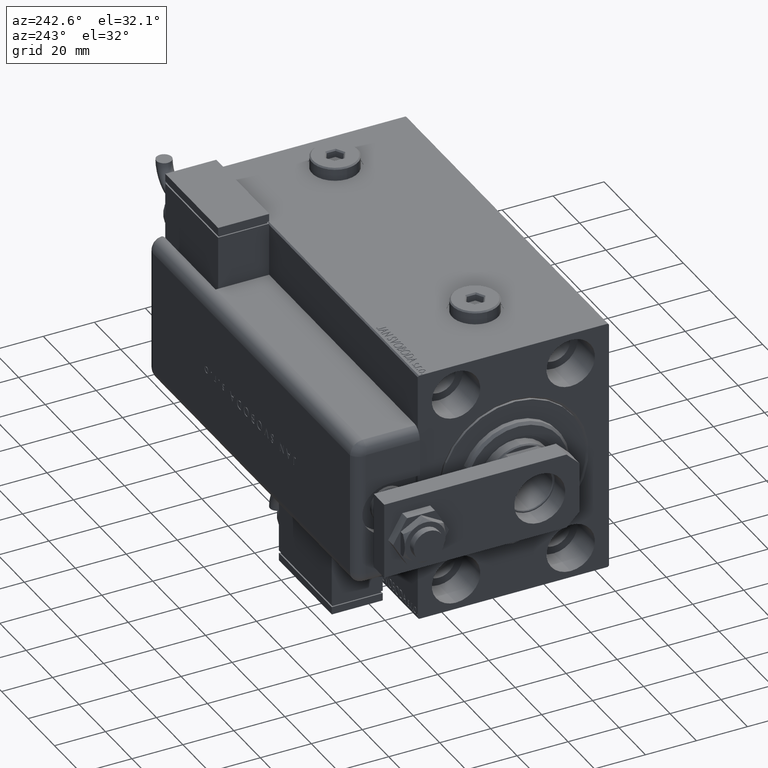
[diagram: clean part render]
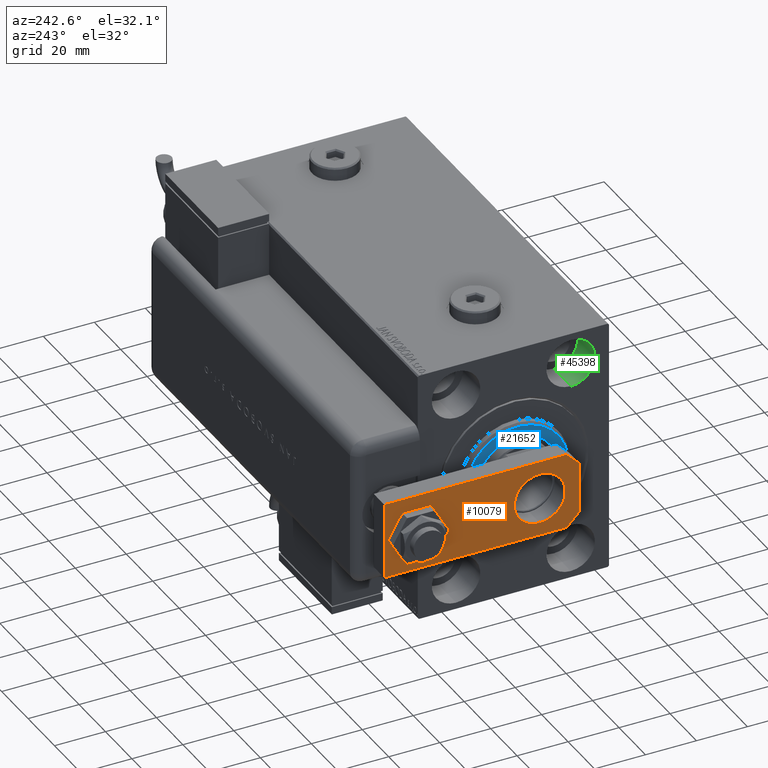
[diagram: same view with three faces highlighted in distinct colors, each labeled with its STEP entity id]
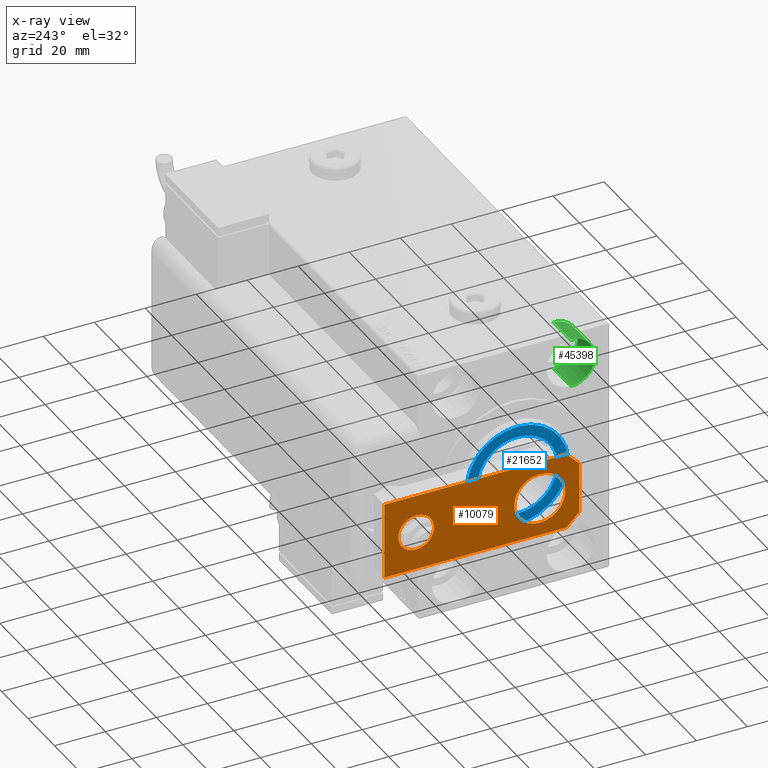
[diagram: x-ray of the same camera — body ghosted, the three highlighted faces saturated]
A machine part, auxiliary view with three faces highlighted in distinct colors.
The next image is the same camera in x-ray (body ghosted, the three faces saturated) — at least one of them is partly hidden behind the body in this view.
Their STEP definitions:

[orange] entity #10079 — the highlighted planar face has unit normal (1, 0, -0).
#28 = DIRECTION ( 'NONE',  ( -1.000000000000000000, 0.000000000000000000, 0.000000000000000000 ) ) ;
#847 = AXIS2_PLACEMENT_3D ( 'NONE', #5897, #14549, #57809 ) ;
#1316 = EDGE_LOOP ( 'NONE', ( #6418, #31873, #56323, #2179, #52308, #50101 ) ) ;
#2179 = ORIENTED_EDGE ( 'NONE', *, *, #42529, .F. ) ;
#2453 = DIRECTION ( 'NONE',  ( 1.000000000000000000, 0.000000000000000000, 0.000000000000000000 ) ) ;
#2677 = EDGE_LOOP ( 'NONE', ( #31313, #34006 ) ) ;
#4307 = VERTEX_POINT ( 'NONE', #36382 ) ;
#4385 = VECTOR ( 'NONE', #24376, 1000.000000000000000 ) ;
#5558 = CARTESIAN_POINT ( 'NONE',  ( 15.00000000000000888, 9.629649721936179265E-32, 0.000000000000000000 ) ) ;
#5747 = CIRCLE ( 'NONE', #43242, 7.000000000000000000 ) ;
#5897 = CARTESIAN_POINT ( 'NONE',  ( 0.000000000000000000, 15.50000000000000000, 0.000000000000000000 ) ) ;
#6304 = LINE ( 'NONE', #35617, #12056 ) ;
#6418 = ORIENTED_EDGE ( 'NONE', *, *, #24288, .F. ) ;
#8834 = VERTEX_POINT ( 'NONE', #22436 ) ;
#9646 = CARTESIAN_POINT ( 'NONE',  ( 1.963948872468190046E-17, 64.00000000000000000, 0.000000000000000000 ) ) ;
#10079 = ADVANCED_FACE ( 'NONE', ( #30361, #26630, #26939 ), #11527, .F. ) ;
#11527 = PLANE ( 'NONE',  #22904 ) ;
#11585 = ORIENTED_EDGE ( 'NONE', *, *, #25014, .T. ) ;
#11719 = VERTEX_POINT ( 'NONE', #15733 ) ;
#12056 = VECTOR ( 'NONE', #30065, 1000.000000000000114 ) ;
#12422 = EDGE_CURVE ( 'NONE', #52066, #16946, #12777, .T. ) ;
#12777 = LINE ( 'NONE', #26984, #15146 ) ;
#13866 = AXIS2_PLACEMENT_3D ( 'NONE', #23801, #52547, #18877 ) ;
#14549 = DIRECTION ( 'NONE',  ( 0.000000000000000000, 0.000000000000000000, 1.000000000000000000 ) ) ;
#15146 = VECTOR ( 'NONE', #22947, 1000.000000000000000 ) ;
#15733 = CARTESIAN_POINT ( 'NONE',  ( -7.000000000000000000, 64.00000000000000000, 0.000000000000000000 ) ) ;
#16057 = VERTEX_POINT ( 'NONE', #44395 ) ;
#16472 = VECTOR ( 'NONE', #39344, 1000.000000000000114 ) ;
#16946 = VERTEX_POINT ( 'NONE', #41748 ) ;
#18473 = LINE ( 'NONE', #46596, #51083 ) ;
#18877 = DIRECTION ( 'NONE',  ( 1.000000000000000000, 0.000000000000000000, 0.000000000000000000 ) ) ;
#19752 = ORIENTED_EDGE ( 'NONE', *, *, #23472, .T. ) ;
#20056 = VECTOR ( 'NONE', #28, 1000.000000000000000 ) ;
#20157 = VERTEX_POINT ( 'NONE', #30066 ) ;
#22366 = VERTEX_POINT ( 'NONE', #42385 ) ;
#22419 = EDGE_CURVE ( 'NONE', #43843, #16946, #43691, .T. ) ;
#22436 = CARTESIAN_POINT ( 'NONE',  ( 15.00000000000000888, 5.000000000000004441, 0.000000000000000000 ) ) ;
#22904 = AXIS2_PLACEMENT_3D ( 'NONE', #31283, #35006, #40864 ) ;
#22947 = DIRECTION ( 'NONE',  ( -1.360567432138672328E-16, -1.000000000000000000, 0.000000000000000000 ) ) ;
#23472 = EDGE_CURVE ( 'NONE', #11719, #22366, #54018, .T. ) ;
#23801 = CARTESIAN_POINT ( 'NONE',  ( 0.000000000000000000, 15.50000000000000000, 0.000000000000000000 ) ) ;
#23951 = CARTESIAN_POINT ( 'NONE',  ( -10.00000000000001066, 9.629649721936179265E-32, 0.000000000000000000 ) ) ;
#24288 = EDGE_CURVE ( 'NONE', #43843, #16057, #18473, .T. ) ;
#24376 = DIRECTION ( 'NONE',  ( -6.802837160693361638E-17, 1.000000000000000000, 0.000000000000000000 ) ) ;
#25014 = EDGE_CURVE ( 'NONE', #22366, #11719, #5747, .T. ) ;
#25428 = CARTESIAN_POINT ( 'NONE',  ( -10.00000000000001066, 9.629649721936179265E-32, 0.000000000000000000 ) ) ;
#26269 = EDGE_CURVE ( 'NONE', #29583, #4307, #48217, .T. ) ;
#26630 = FACE_BOUND ( 'NONE', #32325, .T. ) ;
#26939 = FACE_BOUND ( 'NONE', #2677, .T. ) ;
#26984 = CARTESIAN_POINT ( 'NONE',  ( -14.99999999999999822, 76.50000000000000000, 0.000000000000000000 ) ) ;
#28783 = DIRECTION ( 'NONE',  ( 1.000000000000000000, 0.000000000000000000, 0.000000000000000000 ) ) ;
#29022 = LINE ( 'NONE', #5558, #4385 ) ;
#29583 = VERTEX_POINT ( 'NONE', #44954 ) ;
#30065 = DIRECTION ( 'NONE',  ( -0.7071067811865489050, -0.7071067811865460184, -0.000000000000000000 ) ) ;
#30066 = CARTESIAN_POINT ( 'NONE',  ( 15.00000000000000355, 76.50000000000000000, 0.000000000000000000 ) ) ;
#30361 = FACE_OUTER_BOUND ( 'NONE', #1316, .T. ) ;
#31283 = CARTESIAN_POINT ( 'NONE',  ( 0.000000000000000000, 0.000000000000000000, 0.000000000000000000 ) ) ;
#31313 = ORIENTED_EDGE ( 'NONE', *, *, #26269, .T. ) ;
#31873 = ORIENTED_EDGE ( 'NONE', *, *, #22419, .T. ) ;
#32078 = DIRECTION ( 'NONE',  ( 1.000000000000000000, 0.000000000000000000, 0.000000000000000000 ) ) ;
#32325 = EDGE_LOOP ( 'NONE', ( #19752, #11585 ) ) ;
#34006 = ORIENTED_EDGE ( 'NONE', *, *, #46389, .T. ) ;
#35006 = DIRECTION ( 'NONE',  ( -0.000000000000000000, 0.000000000000000000, 1.000000000000000000 ) ) ;
#35617 = CARTESIAN_POINT ( 'NONE',  ( 15.00000000000000888, 5.000000000000004441, 0.000000000000000000 ) ) ;
#36382 = CARTESIAN_POINT ( 'NONE',  ( 10.00000000000000711, 15.50000000000000178, 0.000000000000000000 ) ) ;
#36805 = LINE ( 'NONE', #55665, #20056 ) ;
#39344 = DIRECTION ( 'NONE',  ( -0.7071067811865460184, 0.7071067811865489050, -0.000000000000000000 ) ) ;
#39527 = DIRECTION ( 'NONE',  ( 0.000000000000000000, 0.000000000000000000, 1.000000000000000000 ) ) ;
#39659 = CARTESIAN_POINT ( 'NONE',  ( -14.99999999999999822, 76.50000000000000000, 0.000000000000000000 ) ) ;
#40148 = AXIS2_PLACEMENT_3D ( 'NONE', #9646, #51678, #28783 ) ;
#40864 = DIRECTION ( 'NONE',  ( 1.000000000000000000, 0.000000000000000000, 0.000000000000000000 ) ) ;
#41748 = CARTESIAN_POINT ( 'NONE',  ( -15.00000000000000888, 5.000000000000018652, 0.000000000000000000 ) ) ;
#42385 = CARTESIAN_POINT ( 'NONE',  ( 7.000000000000000000, 64.00000000000000000, 0.000000000000000000 ) ) ;
#42529 = EDGE_CURVE ( 'NONE', #20157, #52066, #36805, .T. ) ;
#43242 = AXIS2_PLACEMENT_3D ( 'NONE', #44474, #39527, #2453 ) ;
#43691 = LINE ( 'NONE', #25428, #16472 ) ;
#43843 = VERTEX_POINT ( 'NONE', #23951 ) ;
#44395 = CARTESIAN_POINT ( 'NONE',  ( 9.999999999999982236, 9.629649721936179265E-32, 0.000000000000000000 ) ) ;
#44474 = CARTESIAN_POINT ( 'NONE',  ( 1.963948872468190046E-17, 64.00000000000000000, 0.000000000000000000 ) ) ;
#44954 = CARTESIAN_POINT ( 'NONE',  ( -10.00000000000000711, 15.50000000000000000, 0.000000000000000000 ) ) ;
#46389 = EDGE_CURVE ( 'NONE', #4307, #29583, #47417, .T. ) ;
#46596 = CARTESIAN_POINT ( 'NONE',  ( -15.00000000000000888, 9.629649721936179265E-32, 0.000000000000000000 ) ) ;
#47417 = CIRCLE ( 'NONE', #13866, 10.00000000000000711 ) ;
#48217 = CIRCLE ( 'NONE', #847, 10.00000000000000711 ) ;
#50101 = ORIENTED_EDGE ( 'NONE', *, *, #50330, .T. ) ;
#50330 = EDGE_CURVE ( 'NONE', #8834, #16057, #6304, .T. ) ;
#51083 = VECTOR ( 'NONE', #32078, 1000.000000000000000 ) ;
#51678 = DIRECTION ( 'NONE',  ( 0.000000000000000000, 0.000000000000000000, 1.000000000000000000 ) ) ;
#52066 = VERTEX_POINT ( 'NONE', #39659 ) ;
#52308 = ORIENTED_EDGE ( 'NONE', *, *, #59706, .F. ) ;
#52547 = DIRECTION ( 'NONE',  ( 0.000000000000000000, 0.000000000000000000, 1.000000000000000000 ) ) ;
#54018 = CIRCLE ( 'NONE', #40148, 7.000000000000000000 ) ;
#55665 = CARTESIAN_POINT ( 'NONE',  ( 15.00000000000000355, 76.50000000000000000, 0.000000000000000000 ) ) ;
#56323 = ORIENTED_EDGE ( 'NONE', *, *, #12422, .F. ) ;
#57809 = DIRECTION ( 'NONE',  ( 1.000000000000000000, 0.000000000000000000, 0.000000000000000000 ) ) ;
#59706 = EDGE_CURVE ( 'NONE', #8834, #20157, #29022, .T. ) ;

[blue] entity #21652 — the highlighted planar face has unit normal (-1, 0, 0).
#1397 = CARTESIAN_POINT ( 'NONE',  ( 3.000000000000000000, 0.000000000000000000, 15.75000000000000000 ) ) ;
#2324 = CARTESIAN_POINT ( 'NONE',  ( 3.000000000000000000, 1.928818708657080950E-15, -15.75000000000000000 ) ) ;
#2434 = DIRECTION ( 'NONE',  ( 1.000000000000000000, -0.000000000000000000, 0.000000000000000000 ) ) ;
#3538 = VERTEX_POINT ( 'NONE', #2324 ) ;
#3982 = CIRCLE ( 'NONE', #34531, 19.99999999999999645 ) ;
#5192 = ORIENTED_EDGE ( 'NONE', *, *, #34846, .T. ) ;
#5576 = AXIS2_PLACEMENT_3D ( 'NONE', #54346, #2434, #26496 ) ;
#5909 = EDGE_LOOP ( 'NONE', ( #5192, #46460 ) ) ;
#10108 = ORIENTED_EDGE ( 'NONE', *, *, #56160, .T. ) ;
#11394 = FACE_BOUND ( 'NONE', #33822, .T. ) ;
#12275 = DIRECTION ( 'NONE',  ( 1.000000000000000000, -0.000000000000000000, 0.000000000000000000 ) ) ;
#15600 = EDGE_CURVE ( 'NONE', #28013, #21136, #56820, .T. ) ;
#16375 = ORIENTED_EDGE ( 'NONE', *, *, #23821, .T. ) ;
#16857 = CARTESIAN_POINT ( 'NONE',  ( 3.000000000000000000, 0.000000000000000000, 19.99999999999999645 ) ) ;
#18668 = DIRECTION ( 'NONE',  ( -1.000000000000000000, 0.000000000000000000, -0.000000000000000000 ) ) ;
#18839 = DIRECTION ( 'NONE',  ( 0.000000000000000000, 0.000000000000000000, -1.000000000000000000 ) ) ;
#20151 = AXIS2_PLACEMENT_3D ( 'NONE', #32573, #18668, #51427 ) ;
#21136 = VERTEX_POINT ( 'NONE', #16857 ) ;
#21652 = ADVANCED_FACE ( 'NONE', ( #44767, #11394 ), #39509, .T. ) ;
#23821 = EDGE_CURVE ( 'NONE', #3538, #45007, #60939, .T. ) ;
#26496 = DIRECTION ( 'NONE',  ( 0.000000000000000000, 0.000000000000000000, -1.000000000000000000 ) ) ;
#28013 = VERTEX_POINT ( 'NONE', #38732 ) ;
#28118 = CARTESIAN_POINT ( 'NONE',  ( 3.000000000000000000, 0.000000000000000000, 0.000000000000000000 ) ) ;
#28368 = AXIS2_PLACEMENT_3D ( 'NONE', #28118, #33053, #18839 ) ;
#30109 = AXIS2_PLACEMENT_3D ( 'NONE', #60584, #55960, #46980 ) ;
#31111 = DIRECTION ( 'NONE',  ( 0.000000000000000000, 0.000000000000000000, -1.000000000000000000 ) ) ;
#32033 = CIRCLE ( 'NONE', #20151, 15.75000000000000000 ) ;
#32573 = CARTESIAN_POINT ( 'NONE',  ( 3.000000000000000000, 0.000000000000000000, 0.000000000000000000 ) ) ;
#33053 = DIRECTION ( 'NONE',  ( -1.000000000000000000, 0.000000000000000000, -0.000000000000000000 ) ) ;
#33822 = EDGE_LOOP ( 'NONE', ( #10108, #16375 ) ) ;
#34531 = AXIS2_PLACEMENT_3D ( 'NONE', #35753, #12275, #31111 ) ;
#34846 = EDGE_CURVE ( 'NONE', #21136, #28013, #3982, .T. ) ;
#35753 = CARTESIAN_POINT ( 'NONE',  ( 3.000000000000000000, 0.000000000000000000, 0.000000000000000000 ) ) ;
#38732 = CARTESIAN_POINT ( 'NONE',  ( 3.000000000000000000, 2.510525938252074087E-15, -19.99999999999999645 ) ) ;
#39509 = PLANE ( 'NONE',  #5576 ) ;
#44767 = FACE_OUTER_BOUND ( 'NONE', #5909, .T. ) ;
#45007 = VERTEX_POINT ( 'NONE', #1397 ) ;
#46460 = ORIENTED_EDGE ( 'NONE', *, *, #15600, .T. ) ;
#46980 = DIRECTION ( 'NONE',  ( 0.000000000000000000, 0.000000000000000000, -1.000000000000000000 ) ) ;
#51427 = DIRECTION ( 'NONE',  ( 0.000000000000000000, 0.000000000000000000, -1.000000000000000000 ) ) ;
#54346 = CARTESIAN_POINT ( 'NONE',  ( 3.000000000000000000, 0.000000000000000000, 0.000000000000000000 ) ) ;
#55960 = DIRECTION ( 'NONE',  ( 1.000000000000000000, -0.000000000000000000, 0.000000000000000000 ) ) ;
#56160 = EDGE_CURVE ( 'NONE', #45007, #3538, #32033, .T. ) ;
#56820 = CIRCLE ( 'NONE', #30109, 19.99999999999999645 ) ;
#60584 = CARTESIAN_POINT ( 'NONE',  ( 3.000000000000000000, 0.000000000000000000, 0.000000000000000000 ) ) ;
#60939 = CIRCLE ( 'NONE', #28368, 15.75000000000000000 ) ;

[green] entity #45398 — the highlighted cylindrical surface (edge-blend (fillet) strip) has radius 9.5 mm, axis along (-1, -0, -0).
#2780 = EDGE_CURVE ( 'NONE', #59545, #49146, #10921, .T. ) ;
#4669 = DIRECTION ( 'NONE',  ( -1.000000000000000000, -0.000000000000000000, -0.000000000000000000 ) ) ;
#6178 = ORIENTED_EDGE ( 'NONE', *, *, #2780, .T. ) ;
#10921 = CIRCLE ( 'NONE', #47435, 9.500000000000001776 ) ;
#11980 = DIRECTION ( 'NONE',  ( -1.000000000000000000, 0.000000000000000000, 0.000000000000000000 ) ) ;
#12167 = DIRECTION ( 'NONE',  ( -1.000000000000000000, 0.000000000000000000, 0.000000000000000000 ) ) ;
#14232 = FACE_OUTER_BOUND ( 'NONE', #55799, .T. ) ;
#15704 = VECTOR ( 'NONE', #49315, 1000.000000000000000 ) ;
#16662 = CARTESIAN_POINT ( 'NONE',  ( 13.00000000000000000, -22.49999999999999645, 47.49999999999999289 ) ) ;
#18179 = VERTEX_POINT ( 'NONE', #16662 ) ;
#22040 = CARTESIAN_POINT ( 'NONE',  ( 0.000000000000000000, -22.49999999999999645, 37.99999999999999289 ) ) ;
#28700 = VECTOR ( 'NONE', #55804, 1000.000000000000000 ) ;
#30397 = DIRECTION ( 'NONE',  ( 0.000000000000000000, 0.000000000000000000, 1.000000000000000000 ) ) ;
#31978 = AXIS2_PLACEMENT_3D ( 'NONE', #37416, #4669, #42069 ) ;
#32951 = EDGE_CURVE ( 'NONE', #46316, #59545, #48095, .T. ) ;
#34585 = ORIENTED_EDGE ( 'NONE', *, *, #40698, .F. ) ;
#37299 = EDGE_CURVE ( 'NONE', #18179, #49146, #41894, .T. ) ;
#37416 = CARTESIAN_POINT ( 'NONE',  ( 13.00000000000000000, -22.49999999999999645, 37.99999999999999289 ) ) ;
#37715 = CYLINDRICAL_SURFACE ( 'NONE', #31978, 9.500000000000001776 ) ;
#40041 = CARTESIAN_POINT ( 'NONE',  ( 13.00000000000000000, -22.49999999999999645, 28.49999999999998934 ) ) ;
#40698 = EDGE_CURVE ( 'NONE', #46316, #18179, #41696, .T. ) ;
#41696 = CIRCLE ( 'NONE', #42652, 9.500000000000001776 ) ;
#41894 = LINE ( 'NONE', #46826, #28700 ) ;
#42069 = DIRECTION ( 'NONE',  ( 0.000000000000000000, 0.000000000000000000, 1.000000000000000000 ) ) ;
#42652 = AXIS2_PLACEMENT_3D ( 'NONE', #50286, #11980, #49685 ) ;
#45398 = ADVANCED_FACE ( 'NONE', ( #14232 ), #37715, .F. ) ;
#46316 = VERTEX_POINT ( 'NONE', #59705 ) ;
#46826 = CARTESIAN_POINT ( 'NONE',  ( 13.00000000000000000, -22.49999999999999645, 47.49999999999999289 ) ) ;
#47435 = AXIS2_PLACEMENT_3D ( 'NONE', #22040, #12167, #30397 ) ;
#48095 = LINE ( 'NONE', #40041, #15704 ) ;
#49146 = VERTEX_POINT ( 'NONE', #54644 ) ;
#49315 = DIRECTION ( 'NONE',  ( -1.000000000000000000, -0.000000000000000000, -0.000000000000000000 ) ) ;
#49685 = DIRECTION ( 'NONE',  ( 0.000000000000000000, 0.000000000000000000, 1.000000000000000000 ) ) ;
#50286 = CARTESIAN_POINT ( 'NONE',  ( 13.00000000000000000, -22.49999999999999645, 37.99999999999999289 ) ) ;
#50892 = ORIENTED_EDGE ( 'NONE', *, *, #32951, .T. ) ;
#54578 = ORIENTED_EDGE ( 'NONE', *, *, #37299, .F. ) ;
#54644 = CARTESIAN_POINT ( 'NONE',  ( 0.000000000000000000, -22.49999999999999645, 47.49999999999999289 ) ) ;
#55650 = CARTESIAN_POINT ( 'NONE',  ( 0.000000000000000000, -22.49999999999999645, 28.49999999999998934 ) ) ;
#55799 = EDGE_LOOP ( 'NONE', ( #34585, #50892, #6178, #54578 ) ) ;
#55804 = DIRECTION ( 'NONE',  ( -1.000000000000000000, -0.000000000000000000, -0.000000000000000000 ) ) ;
#59545 = VERTEX_POINT ( 'NONE', #55650 ) ;
#59705 = CARTESIAN_POINT ( 'NONE',  ( 13.00000000000000000, -22.49999999999999645, 28.49999999999998934 ) ) ;